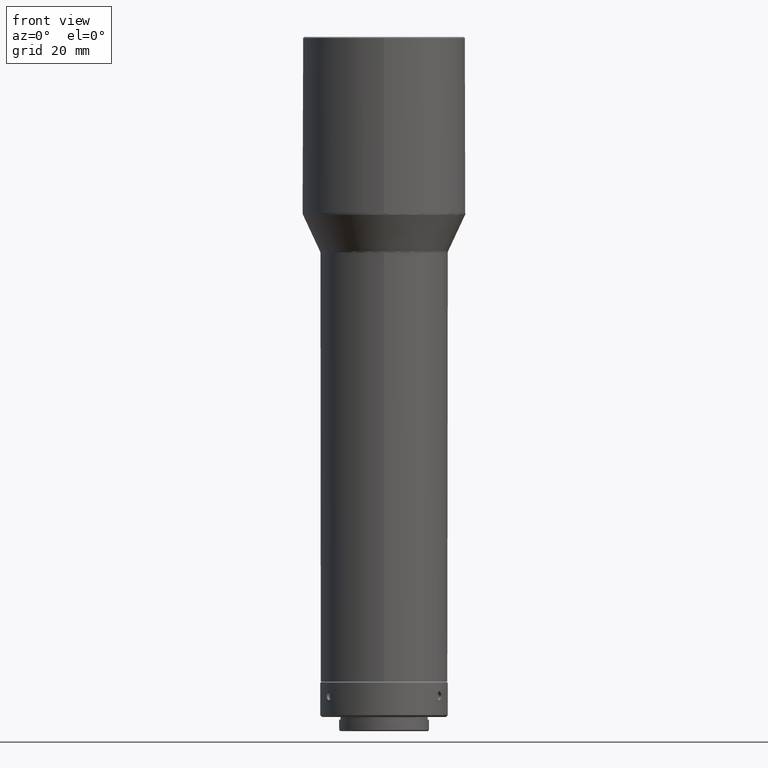
[diagram: clean part render]
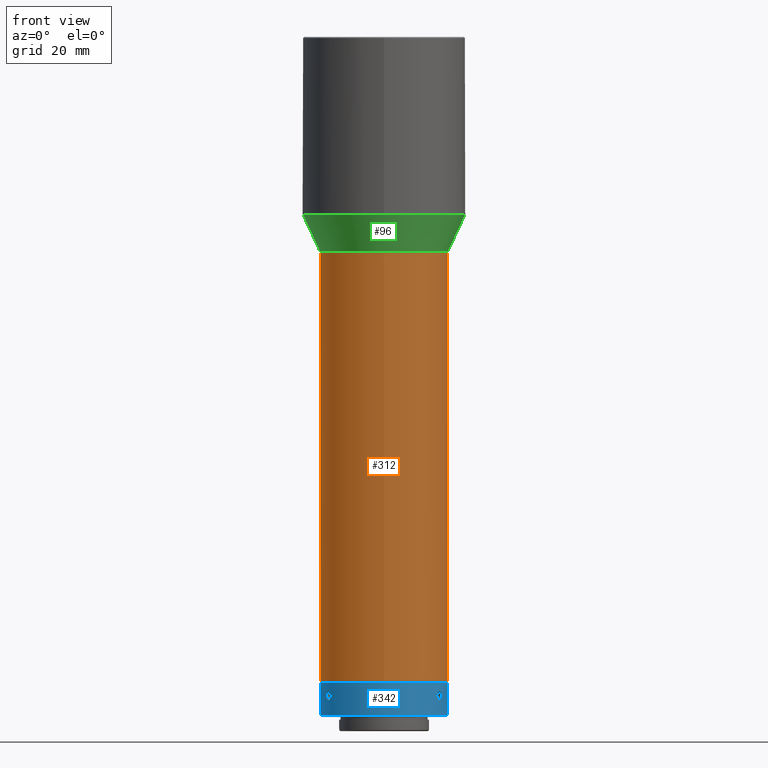
[diagram: same view with three faces highlighted in distinct colors, each labeled with its STEP entity id]
A machine part, front view with three faces highlighted in distinct colors.
Their STEP definitions:

[orange] entity #312 — the highlighted cylindrical surface (bore or boss wall) has radius 18 mm, axis along (0, -0, 1).
#2 = AXIS2_PLACEMENT_3D ( 'NONE', #89, #523, #760 ) ;
#25 = DIRECTION ( 'NONE',  ( 0.000000000000000000, -1.000000000000000000, 0.000000000000000000 ) ) ;
#30 = EDGE_CURVE ( 'NONE', #83, #83, #677, .T. ) ;
#83 = VERTEX_POINT ( 'NONE', #90 ) ;
#89 = CARTESIAN_POINT ( 'NONE',  ( -8.237912435022365134E-14, 3.322666536485011173E-15, -792.0835279999998875 ) ) ;
#90 = CARTESIAN_POINT ( 'NONE',  ( -7.565454241810714803E-14, -18.00000000000005684, -670.9442292651909838 ) ) ;
#94 = VERTEX_POINT ( 'NONE', #334 ) ;
#175 = CYLINDRICAL_SURFACE ( 'NONE', #540, 18.00000000000002132 ) ;
#218 = DIRECTION ( 'NONE',  ( 5.551115123125790098E-17, -3.053113317719188375E-16, 1.000000000000000000 ) ) ;
#219 = ORIENTED_EDGE ( 'NONE', *, *, #570, .T. ) ;
#229 = CARTESIAN_POINT ( 'NONE',  ( -7.565454241810714803E-14, -3.366253409015581107E-14, -670.9442292651909838 ) ) ;
#278 = EDGE_LOOP ( 'NONE', ( #628 ) ) ;
#281 = CARTESIAN_POINT ( 'NONE',  ( -7.227145809069466332E-14, -5.226949789092443910E-14, -610.0000000000000000 ) ) ;
#312 = ADVANCED_FACE ( 'NONE', ( #353, #478 ), #175, .T. ) ;
#334 = CARTESIAN_POINT ( 'NONE',  ( -8.237912435022365134E-14, -18.00000000000001776, -792.0835279999998875 ) ) ;
#353 = FACE_OUTER_BOUND ( 'NONE', #278, .T. ) ;
#356 = CIRCLE ( 'NONE', #2, 18.00000000000002132 ) ;
#418 = DIRECTION ( 'NONE',  ( 0.000000000000000000, -1.000000000000000000, 0.000000000000000000 ) ) ;
#430 = AXIS2_PLACEMENT_3D ( 'NONE', #229, #527, #25 ) ;
#478 = FACE_OUTER_BOUND ( 'NONE', #754, .T. ) ;
#523 = DIRECTION ( 'NONE',  ( 5.551115123125790098E-17, -3.053113317719188375E-16, 1.000000000000000000 ) ) ;
#527 = DIRECTION ( 'NONE',  ( -5.551115123125790098E-17, 3.053113317719188375E-16, -1.000000000000000000 ) ) ;
#540 = AXIS2_PLACEMENT_3D ( 'NONE', #281, #218, #418 ) ;
#570 = EDGE_CURVE ( 'NONE', #94, #94, #356, .T. ) ;
#628 = ORIENTED_EDGE ( 'NONE', *, *, #30, .T. ) ;
#677 = CIRCLE ( 'NONE', #430, 18.00000000000002132 ) ;
#754 = EDGE_LOOP ( 'NONE', ( #219 ) ) ;
#760 = DIRECTION ( 'NONE',  ( 0.000000000000000000, -1.000000000000000000, 0.000000000000000000 ) ) ;

[blue] entity #342 — the highlighted cylindrical surface (bore or boss wall) has radius 18 mm, axis along (0, 0, 1).
#9 = VERTEX_POINT ( 'NONE', #443 ) ;
#13 = VERTEX_POINT ( 'NONE', #702 ) ;
#14 = CARTESIAN_POINT ( 'NONE',  ( 15.42341477952708395, -9.281228519509767239, -797.3013129096971170 ) ) ;
#18 = CARTESIAN_POINT ( 'NONE',  ( 15.19139366244528055, -9.655838794076609943, -797.0846246175249235 ) ) ;
#28 = CARTESIAN_POINT ( 'NONE',  ( 15.06470539628273642, -9.852325387835485060, -796.8514481707627510 ) ) ;
#32 = CARTESIAN_POINT ( 'NONE',  ( -1.091756721072177250, 17.96697050981529031, -795.4531034048883384 ) ) ;
#37 = CARTESIAN_POINT ( 'NONE',  ( -0.3284442371330699717, 17.99763189204313107, -797.3005433772536890 ) ) ;
#40 = DIRECTION ( 'NONE',  ( 1.000000000000000000, 0.000000000000000000, 0.000000000000000000 ) ) ;
#44 = CARTESIAN_POINT ( 'NONE',  ( 0.3260722864606787064, 17.99768327192970219, -797.3013129096972307 ) ) ;
#52 = CARTESIAN_POINT ( 'NONE',  ( 0.7665048592950628459, 17.98405222760584721, -797.0846246175249235 ) ) ;
#54 = CARTESIAN_POINT ( 'NONE',  ( -16.17582393315551670, -7.895740629197049110, -795.9183287607346529 ) ) ;
#58 = CARTESIAN_POINT ( 'NONE',  ( -15.06517510034525209, -9.851589683955904064, -796.8521601668022640 ) ) ;
#61 = CARTESIAN_POINT ( 'NONE',  ( -15.42218430790377148, -9.283256999105457652, -797.3005433772533479 ) ) ;
#79 = CARTESIAN_POINT ( 'NONE',  ( 15.95885680708792798, -8.326356316898312571, -797.0826980424842532 ) ) ;
#87 = EDGE_LOOP ( 'NONE', ( #110 ) ) ;
#91 = CARTESIAN_POINT ( 'NONE',  ( 15.42218411498788377, -9.283257321960583397, -794.8665126990362069 ) ) ;
#95 = CARTESIAN_POINT ( 'NONE',  ( 15.26487564935874808, -9.539717018441056240, -794.9912321845228007 ) ) ;
#101 = CARTESIAN_POINT ( 'NONE',  ( 15.01384693159024231, -9.929166768100163409, -795.4535216262730728 ) ) ;
#108 = CARTESIAN_POINT ( 'NONE',  ( -0.1622122895000155107, 18.00000780388930721, -794.8334156239673121 ) ) ;
#110 = ORIENTED_EDGE ( 'NONE', *, *, #402, .F. ) ;
#111 = CARTESIAN_POINT ( 'NONE',  ( -0.7665056236648906118, 17.98405219532856592, -795.0824319321260418 ) ) ;
#116 = CARTESIAN_POINT ( 'NONE',  ( -1.091986416381327096, 17.96695628302231640, -796.7135356652778455 ) ) ;
#122 = CARTESIAN_POINT ( 'NONE',  ( -15.67042028344148719, -8.858020202463205095, -794.8336409727663749 ) ) ;
#123 = CARTESIAN_POINT ( 'NONE',  ( -16.06471677035730394, -8.120254879791547253, -796.8514481707626373 ) ) ;
#125 = FACE_BOUND ( 'NONE', #206, .T. ) ;
#130 = FACE_OUTER_BOUND ( 'NONE', #87, .T. ) ;
#143 = CARTESIAN_POINT ( 'NONE',  ( 16.06471715756161345, -8.120254114432439607, -795.3156088980894083 ) ) ;
#148 = CARTESIAN_POINT ( 'NONE',  ( 15.06517464280619834, -9.851590384043120707, -795.3148968769148723 ) ) ;
#154 = CARTESIAN_POINT ( 'NONE',  ( 14.92582393315537814, -10.06080413865839951, -795.9183287607346529 ) ) ;
#162 = CARTESIAN_POINT ( 'NONE',  ( 1.249999999999991118, 17.95654476785553655, -796.0835279999998875 ) ) ;
#163 = CARTESIAN_POINT ( 'NONE',  ( -15.75062872817974124, -8.714374564439973270, -794.8665126990358658 ) ) ;
#166 = CARTESIAN_POINT ( 'NONE',  ( -0.3260726576621967854, 17.99768326650239914, -794.8657431631306736 ) ) ;
#167 = CARTESIAN_POINT ( 'NONE',  ( -15.06470492706443842, -9.852326105843829396, -795.3156088980896357 ) ) ;
#173 = CARTESIAN_POINT ( 'NONE',  ( 1.249999999999991562, 17.95654476785554010, -796.2487272392653495 ) ) ;
#174 = B_SPLINE_CURVE_WITH_KNOTS ( 'NONE', 3,
 ( #610, #54, #296, #552, #793, #237, #481, #163, #122, #362, #406, #468, #725, #167, #181, #795, #564, #687, #749, #561, #58, #364, #618, #61, #691, #434, #802, #243, #690, #123, #424, #562, #376, #743 ),
 .UNSPECIFIED., .T., .F.,
 ( 4, 2, 2, 2, 2, 2, 2, 2, 2, 2, 2, 2, 2, 2, 2, 2, 4 ),
 ( 0.000000000000000000, 0.0004885519476059286669, 0.0009771038952118573338, 0.001465655842817786001, 0.001954207790423714668, 0.002442759738029643551, 0.002931311685635572001, 0.003419863633241500452, 0.003908415580847429335, 0.004396967528453358219, 0.004885519476059287103, 0.005374071423665215119, 0.005862623371271144003, 0.006351175318877072887, 0.006839727266483000903, 0.007328279214088929787, 0.007816831161694858671 ),
 .UNSPECIFIED. ) ;
#178 = CARTESIAN_POINT ( 'NONE',  ( 14.92582393315539413, -10.06080413865837997, -796.0835280000000012 ) ) ;
#181 = CARTESIAN_POINT ( 'NONE',  ( -15.01397453000996585, -9.928974310108319656, -795.4531034048875426 ) ) ;
#183 = DIRECTION ( 'NONE',  ( -1.000000000000000000, 3.469446951953614189E-18, 0.000000000000000000 ) ) ;
#186 = CIRCLE ( 'NONE', #420, 18.00000000000000355 ) ;
#189 = CARTESIAN_POINT ( 'NONE',  ( -7.702630993699205639E-31, -1.295151956456359438E-32, -792.3835279999998420 ) ) ;
#199 = CARTESIAN_POINT ( 'NONE',  ( 14.92582393315539413, -10.06080413865837997, -796.0835280000000012 ) ) ;
#206 = EDGE_LOOP ( 'NONE', ( #388 ) ) ;
#210 = CARTESIAN_POINT ( 'NONE',  ( 14.94412286735163242, -10.03380008369035714, -795.7562289706281717 ) ) ;
#220 = CARTESIAN_POINT ( 'NONE',  ( -1.217386932848439018, 17.95889559784533773, -795.7559047959091458 ) ) ;
#237 = CARTESIAN_POINT ( 'NONE',  ( -15.95885716155516576, -8.326355637990779712, -795.0843585139830338 ) ) ;
#243 = CARTESIAN_POINT ( 'NONE',  ( -15.89389197149334088, -8.450273622267832963, -797.1762040156605735 ) ) ;
#245 = FACE_OUTER_BOUND ( 'NONE', #327, .T. ) ;
#251 = EDGE_CURVE ( 'NONE', #324, #324, #455, .T. ) ;
#262 = CARTESIAN_POINT ( 'NONE',  ( 16.16158696957451824, -7.925090474844783905, -796.4108288894951784 ) ) ;
#268 = CARTESIAN_POINT ( 'NONE',  ( 16.16155327807074116, -7.925159788840832498, -795.7559047959089185 ) ) ;
#272 = CARTESIAN_POINT ( 'NONE',  ( 15.01397497146086124, -9.928973643487818634, -796.7139539346064794 ) ) ;
#276 = CARTESIAN_POINT ( 'NONE',  ( -0.6287950393457110154, 17.98965100100358683, -794.9908523457097544 ) ) ;
#279 = CARTESIAN_POINT ( 'NONE',  ( 1.091987193791646327, 17.96695623533830144, -795.4535216262730728 ) ) ;
#280 = VERTEX_POINT ( 'NONE', #463 ) ;
#288 = CARTESIAN_POINT ( 'NONE',  ( 1.000011374074571302, 17.97258026762709804, -796.8514481707624100 ) ) ;
#293 = EDGE_LOOP ( 'NONE', ( #473 ) ) ;
#294 = CARTESIAN_POINT ( 'NONE',  ( -0.7685923121488421605, 17.98395356874551609, -797.0826980424836847 ) ) ;
#296 = CARTESIAN_POINT ( 'NONE',  ( -16.16158720264612825, -7.925089998557205639, -795.7562289706281717 ) ) ;
#300 = FACE_BOUND ( 'NONE', #293, .T. ) ;
#303 = DIRECTION ( 'NONE',  ( 1.000000000000000000, 0.000000000000000000, 0.000000000000000000 ) ) ;
#317 = ORIENTED_EDGE ( 'NONE', *, *, #251, .T. ) ;
#320 = CARTESIAN_POINT ( 'NONE',  ( 15.75062854503694965, -8.714374892937593486, -797.3005433772535753 ) ) ;
#322 = B_SPLINE_CURVE_WITH_KNOTS ( 'NONE', 3,
 ( #728, #532, #673, #279, #782, #594, #412, #670, #589, #108, #166, #276, #111, #466, #32, #220, #723, #480, #733, #116, #404, #294, #528, #37, #603, #550, #44, #660, #52, #288, #543, #788, #173, #774 ),
 .UNSPECIFIED., .T., .F.,
 ( 4, 2, 2, 2, 2, 2, 2, 2, 2, 2, 2, 2, 2, 2, 2, 2, 4 ),
 ( 0.000000000000000000, 0.0004885519476059286669, 0.0009771038952118573338, 0.001465655842817786218, 0.001954207790423714668, 0.002442759738029643118, 0.002931311685635572435, 0.003419863633241500885, 0.003908415580847429335, 0.004396967528453358219, 0.004885519476059286235, 0.005374071423665215119, 0.005862623371271144870, 0.006351175318877072887, 0.006839727266483001770, 0.007328279214088928920, 0.007816831161694856936 ),
 .UNSPECIFIED. ) ;
#324 = VERTEX_POINT ( 'NONE', #577 ) ;
#326 = AXIS2_PLACEMENT_3D ( 'NONE', #189, #738, #183 ) ;
#327 = EDGE_LOOP ( 'NONE', ( #535 ) ) ;
#330 = CARTESIAN_POINT ( 'NONE',  ( 15.95789887597212697, -8.328212755427129466, -795.0824319321259281 ) ) ;
#331 = EDGE_CURVE ( 'NONE', #9, #9, #174, .T. ) ;
#339 = CARTESIAN_POINT ( 'NONE',  ( 15.89407479287072533, -8.449912178065829949, -797.1758241720305023 ) ) ;
#342 = ADVANCED_FACE ( 'NONE', ( #130, #245, #300, #427, #125 ), #493, .T. ) ;
#348 = VERTEX_POINT ( 'NONE', #162 ) ;
#362 = CARTESIAN_POINT ( 'NONE',  ( -15.50735788173646945, -9.140483865457362356, -794.8334156239671984 ) ) ;
#364 = CARTESIAN_POINT ( 'NONE',  ( -15.19026449493897779, -9.657597251847127140, -797.0826980424835710 ) ) ;
#376 = CARTESIAN_POINT ( 'NONE',  ( -16.17582393315549893, -7.895740629197107729, -796.2487272392653495 ) ) ;
#377 = AXIS2_PLACEMENT_3D ( 'NONE', #558, #489, #303 ) ;
#383 = CARTESIAN_POINT ( 'NONE',  ( 16.10583377797241766, -8.037790164337417664, -796.7135356652778455 ) ) ;
#387 = CARTESIAN_POINT ( 'NONE',  ( 15.89389229175798235, -8.450273022655030886, -794.9908523457091860 ) ) ;
#388 = ORIENTED_EDGE ( 'NONE', *, *, #331, .T. ) ;
#397 = CARTESIAN_POINT ( 'NONE',  ( 16.06431448413917806, -8.121029507381743784, -796.8521601668026051 ) ) ;
#402 = EDGE_CURVE ( 'NONE', #13, #13, #688, .T. ) ;
#404 = CARTESIAN_POINT ( 'NONE',  ( -0.9991393837938816747, 17.97261919133772068, -796.8521601668028325 ) ) ;
#406 = CARTESIAN_POINT ( 'NONE',  ( -15.42341458922628483, -9.281228838265834113, -794.8657431631303325 ) ) ;
#412 = CARTESIAN_POINT ( 'NONE',  ( 0.6291994582050496332, 17.98962860717568901, -794.9912321845222323 ) ) ;
#420 = AXIS2_PLACEMENT_3D ( 'NONE', #462, #470, #40 ) ;
#424 = CARTESIAN_POINT ( 'NONE',  ( -16.10573089449705719, -8.037996915324866265, -796.7139539346067068 ) ) ;
#427 = FACE_BOUND ( 'NONE', #695, .T. ) ;
#434 = CARTESIAN_POINT ( 'NONE',  ( -15.66957007690071535, -8.859524101807538798, -797.3336403759024051 ) ) ;
#443 = CARTESIAN_POINT ( 'NONE',  ( -16.17582393315550959, -7.895740629197078420, -796.0835280000001148 ) ) ;
#453 = CARTESIAN_POINT ( 'NONE',  ( 16.17582379988434482, -7.895740902226664915, -796.2487292896937561 ) ) ;
#455 = B_SPLINE_CURVE_WITH_KNOTS ( 'NONE', 3,
 ( #199, #154, #210, #101, #148, #516, #95, #91, #703, #578, #525, #387, #330, #143, #582, #268, #699, #453, #262, #383, #397, #79, #339, #320, #587, #573, #14, #654, #18, #28, #272, #460, #717, #178 ),
 .UNSPECIFIED., .T., .F.,
 ( 4, 2, 2, 2, 2, 2, 2, 2, 2, 2, 2, 2, 2, 2, 2, 2, 4 ),
 ( 0.000000000000000000, 0.0004885519476059295343, 0.0009771038952118590686, 0.001465655842817788603, 0.001954207790423718137, 0.002442759738029644852, 0.002931311685635572001, 0.003419863633241498717, 0.003908415580847425866, 0.004396967528453353015, 0.004885519476059279297, 0.005374071423665207313, 0.005862623371271133595, 0.006351175318877060744, 0.006839727266482987025, 0.007328279214088915042, 0.007816831161694841323 ),
 .UNSPECIFIED. ) ;
#460 = CARTESIAN_POINT ( 'NONE',  ( 14.94416663059034001, -10.03373538488430405, -796.4111530172557423 ) ) ;
#462 = CARTESIAN_POINT ( 'NONE',  ( -7.702630993699205639E-31, -1.295151956456359438E-32, -801.5835279999998875 ) ) ;
#463 = CARTESIAN_POINT ( 'NONE',  ( 18.00000000000000355, -1.295151956456359438E-32, -801.5835279999998875 ) ) ;
#466 = CARTESIAN_POINT ( 'NONE',  ( -1.000012230497475674, 17.97258022027630275, -795.3156088980902041 ) ) ;
#468 = CARTESIAN_POINT ( 'NONE',  ( -15.26509725241261251, -9.539377978348502651, -794.9908523457096408 ) ) ;
#470 = DIRECTION ( 'NONE',  ( 0.000000000000000000, 0.000000000000000000, 1.000000000000000000 ) ) ;
#473 = ORIENTED_EDGE ( 'NONE', *, *, #741, .T. ) ;
#480 = CARTESIAN_POINT ( 'NONE',  ( -1.249999696914078529, 17.95654478895411899, -796.2487292896940971 ) ) ;
#481 = CARTESIAN_POINT ( 'NONE',  ( -15.89407510756410780, -8.449911588734558165, -794.9912321845231418 ) ) ;
#489 = DIRECTION ( 'NONE',  ( 0.000000000000000000, 0.000000000000000000, 1.000000000000000000 ) ) ;
#493 = CYLINDRICAL_SURFACE ( 'NONE', #377, 18.00000000000000355 ) ;
#516 = CARTESIAN_POINT ( 'NONE',  ( 15.19026408422143248, -9.657597898278536874, -795.0843585139831475 ) ) ;
#525 = CARTESIAN_POINT ( 'NONE',  ( 15.74948724688811730, -8.716454428236506402, -794.8657431631298778 ) ) ;
#528 = CARTESIAN_POINT ( 'NONE',  ( -0.6291987904827270883, 17.98962862930886075, -797.1758241720310707 ) ) ;
#532 = CARTESIAN_POINT ( 'NONE',  ( 1.249999999999990896, 17.95654476785553300, -795.9183287607346529 ) ) ;
#535 = ORIENTED_EDGE ( 'NONE', *, *, #721, .T. ) ;
#543 = CARTESIAN_POINT ( 'NONE',  ( 1.091755923036194842, 17.96697055881276128, -796.7139539346064794 ) ) ;
#550 = CARTESIAN_POINT ( 'NONE',  ( 0.1622121008445769341, 18.00000780388026556, -797.3336403759025188 ) ) ;
#552 = CARTESIAN_POINT ( 'NONE',  ( -16.10583412538212045, -8.037789467238035002, -795.4535216262729591 ) ) ;
#558 = CARTESIAN_POINT ( 'NONE',  ( -7.702630993699205639E-31, -1.295151956456359438E-32, -792.0835279999998875 ) ) ;
#561 = CARTESIAN_POINT ( 'NONE',  ( -15.01384736159115363, -9.929166118684834785, -796.7135356652778455 ) ) ;
#562 = CARTESIAN_POINT ( 'NONE',  ( -16.16155305345584026, -7.925160248036699606, -796.4111530172558560 ) ) ;
#564 = CARTESIAN_POINT ( 'NONE',  ( -14.92582376334306105, -10.06080439058547071, -795.9183312969528288 ) ) ;
#573 = CARTESIAN_POINT ( 'NONE',  ( 15.50735797605623567, -9.140483702072653927, -797.3336403759025188 ) ) ;
#577 = CARTESIAN_POINT ( 'NONE',  ( 14.92582393315539768, -10.06080413865837997, -796.0835280000001148 ) ) ;
#578 = CARTESIAN_POINT ( 'NONE',  ( 15.66957017123612594, -8.859523938431872025, -794.8334156239671984 ) ) ;
#582 = CARTESIAN_POINT ( 'NONE',  ( 16.10573125108188108, -8.037996199706920919, -795.4531034048875426 ) ) ;
#587 = CARTESIAN_POINT ( 'NONE',  ( 15.67042018912277435, -8.858020365846082100, -797.3334150273642535 ) ) ;
#589 = CARTESIAN_POINT ( 'NONE',  ( 0.1639396191514384538, 17.99999215467088476, -794.8336409727662613 ) ) ;
#594 = CARTESIAN_POINT ( 'NONE',  ( 0.7685930773333922161, 17.98395353626941073, -795.0843585139832612 ) ) ;
#603 = CARTESIAN_POINT ( 'NONE',  ( -0.1639394304986100115, 17.99999215467991576, -797.3334150273640262 ) ) ;
#610 = CARTESIAN_POINT ( 'NONE',  ( -16.17582393315550959, -7.895740629197078420, -796.0835280000000012 ) ) ;
#618 = CARTESIAN_POINT ( 'NONE',  ( -15.26487600238791842, -9.539716451242952644, -797.1758241720303886 ) ) ;
#654 = CARTESIAN_POINT ( 'NONE',  ( 15.26509761156019884, -9.539377401184779615, -797.1762040156605735 ) ) ;
#660 = CARTESIAN_POINT ( 'NONE',  ( 0.6287943599332048716, 17.98965102345267653, -797.1762040156604598 ) ) ;
#670 = CARTESIAN_POINT ( 'NONE',  ( 0.3284446131915306211, 17.99763188640062594, -794.8665126990359795 ) ) ;
#673 = CARTESIAN_POINT ( 'NONE',  ( 1.217464335294312860, 17.95889008224764893, -795.7562289706274896 ) ) ;
#687 = CARTESIAN_POINT ( 'NONE',  ( -14.92582410297037576, -10.06080388672738124, -796.2487292896937561 ) ) ;
#688 = CIRCLE ( 'NONE', #326, 17.99999999999999645 ) ;
#690 = CARTESIAN_POINT ( 'NONE',  ( -15.95789852174031864, -8.328213433529164433, -797.0846246175249235 ) ) ;
#691 = CARTESIAN_POINT ( 'NONE',  ( -15.50648075862407005, -9.141971788833755497, -797.3334150273636851 ) ) ;
#695 = EDGE_LOOP ( 'NONE', ( #317 ) ) ;
#699 = CARTESIAN_POINT ( 'NONE',  ( 16.17582406642459247, -7.895740356171736529, -795.9183312969527151 ) ) ;
#702 = CARTESIAN_POINT ( 'NONE',  ( -17.99999999999999645, 6.245004513516503075E-17, -792.3835279999998420 ) ) ;
#703 = CARTESIAN_POINT ( 'NONE',  ( 15.50648066428969685, -9.141971952207601504, -794.8336409727662613 ) ) ;
#717 = CARTESIAN_POINT ( 'NONE',  ( 14.92582393315541189, -10.06080413865835688, -796.2487272392654631 ) ) ;
#721 = EDGE_CURVE ( 'NONE', #280, #280, #186, .T. ) ;
#723 = CARTESIAN_POINT ( 'NONE',  ( -1.250000303081700626, 17.95654474675726675, -795.9183312969535109 ) ) ;
#725 = CARTESIAN_POINT ( 'NONE',  ( -15.19139325230758253, -9.655839439901393817, -795.0824319321260418 ) ) ;
#728 = CARTESIAN_POINT ( 'NONE',  ( 1.249999999999991118, 17.95654476785553655, -796.0835280000000012 ) ) ;
#733 = CARTESIAN_POINT ( 'NONE',  ( -1.217463806281648075, 17.95889011854549366, -796.4108288894955194 ) ) ;
#738 = DIRECTION ( 'NONE',  ( -0.000000000000000000, -0.000000000000000000, 1.000000000000000000 ) ) ;
#741 = EDGE_CURVE ( 'NONE', #348, #348, #322, .T. ) ;
#743 = CARTESIAN_POINT ( 'NONE',  ( -16.17582393315550959, -7.895740629197078420, -796.0835280000000012 ) ) ;
#749 = CARTESIAN_POINT ( 'NONE',  ( -14.94412316329297319, -10.03379964370063249, -796.4108288894950647 ) ) ;
#774 = CARTESIAN_POINT ( 'NONE',  ( 1.249999999999991118, 17.95654476785553655, -796.0835280000000012 ) ) ;
#782 = CARTESIAN_POINT ( 'NONE',  ( 0.9991402188564658671, 17.97261914514090364, -795.3148968769148723 ) ) ;
#788 = CARTESIAN_POINT ( 'NONE',  ( 1.217386422865448292, 17.95889563292107738, -796.4111530172556286 ) ) ;
#793 = CARTESIAN_POINT ( 'NONE',  ( -16.06431486166297518, -8.121028761097695892, -795.3148968769152134 ) ) ;
#795 = CARTESIAN_POINT ( 'NONE',  ( -14.94416634522249510, -10.03373580900444750, -795.7559047959086911 ) ) ;
#802 = CARTESIAN_POINT ( 'NONE',  ( -15.74948706598767245, -8.716454752419856788, -797.3013129096968896 ) ) ;

[green] entity #96 — the highlighted conical surface has half-angle 25 deg.
#71 = AXIS2_PLACEMENT_3D ( 'NONE', #343, #598, #169 ) ;
#92 = EDGE_LOOP ( 'NONE', ( #441 ) ) ;
#96 = ADVANCED_FACE ( 'NONE', ( #332, #124 ), #483, .T. ) ;
#124 = FACE_BOUND ( 'NONE', #92, .T. ) ;
#137 = DIRECTION ( 'NONE',  ( 5.551115123125790098E-17, -3.053113317719188375E-16, 1.000000000000000000 ) ) ;
#169 = DIRECTION ( 'NONE',  ( 1.000000000000000000, 5.551115123125880077E-17, 0.000000000000000000 ) ) ;
#212 = CIRCLE ( 'NONE', #71, 22.90630778703665982 ) ;
#233 = DIRECTION ( 'NONE',  ( 0.000000000000000000, 0.000000000000000000, 1.000000000000000000 ) ) ;
#236 = CARTESIAN_POINT ( 'NONE',  ( 22.90630778703658166, -3.567103153498748458E-14, -660.2009235990977913 ) ) ;
#301 = CARTESIAN_POINT ( 'NONE',  ( -7.459310946700270506E-14, -3.694258705070339687E-14, -660.2009235990977913 ) ) ;
#332 = FACE_OUTER_BOUND ( 'NONE', #380, .T. ) ;
#343 = CARTESIAN_POINT ( 'NONE',  ( -7.505816915255299447E-14, -3.694258705070344105E-14, -660.2009235990977913 ) ) ;
#344 = CARTESIAN_POINT ( 'NONE',  ( 18.09369221296332242, -3.278716254971344116E-14, -670.5216110034501753 ) ) ;
#380 = EDGE_LOOP ( 'NONE', ( #708 ) ) ;
#382 = DIRECTION ( 'NONE',  ( 1.000000000000000000, 5.551115123125824610E-17, 0.000000000000000000 ) ) ;
#429 = AXIS2_PLACEMENT_3D ( 'NONE', #301, #233, #479 ) ;
#441 = ORIENTED_EDGE ( 'NONE', *, *, #799, .T. ) ;
#479 = DIRECTION ( 'NONE',  ( 1.000000000000000000, 0.000000000000000000, 0.000000000000000000 ) ) ;
#483 = CONICAL_SURFACE ( 'NONE', #429, 22.90630778703665982, 0.4363323129985766102 ) ;
#524 = VERTEX_POINT ( 'NONE', #236 ) ;
#526 = CIRCLE ( 'NONE', #541, 18.09369221296339703 ) ;
#541 = AXIS2_PLACEMENT_3D ( 'NONE', #698, #137, #382 ) ;
#598 = DIRECTION ( 'NONE',  ( -5.551115123125790098E-17, 3.053113317719188375E-16, -1.000000000000000000 ) ) ;
#666 = VERTEX_POINT ( 'NONE', #344 ) ;
#689 = EDGE_CURVE ( 'NONE', #524, #524, #212, .T. ) ;
#698 = CARTESIAN_POINT ( 'NONE',  ( -7.563108239186655008E-14, -3.379156423447908715E-14, -670.5216110034501753 ) ) ;
#708 = ORIENTED_EDGE ( 'NONE', *, *, #689, .T. ) ;
#799 = EDGE_CURVE ( 'NONE', #666, #666, #526, .T. ) ;